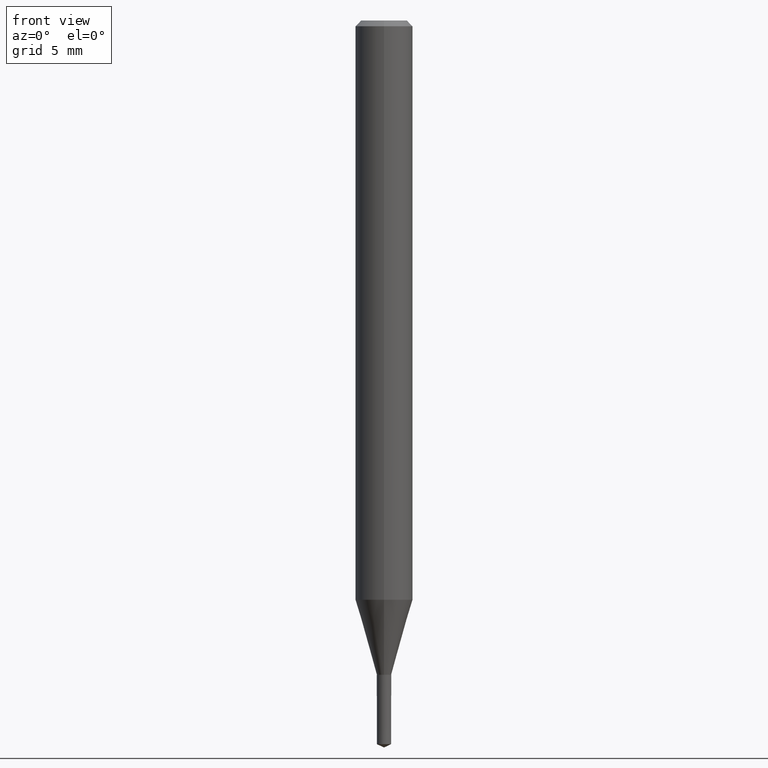
[diagram: clean part render]
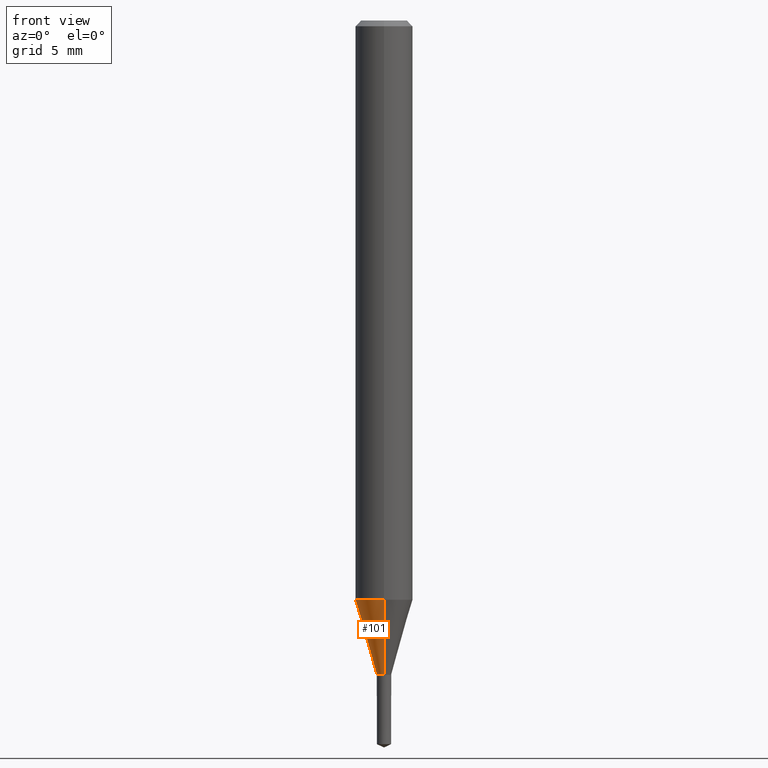
[diagram: same view with one face highlighted and labeled with its STEP entity id]
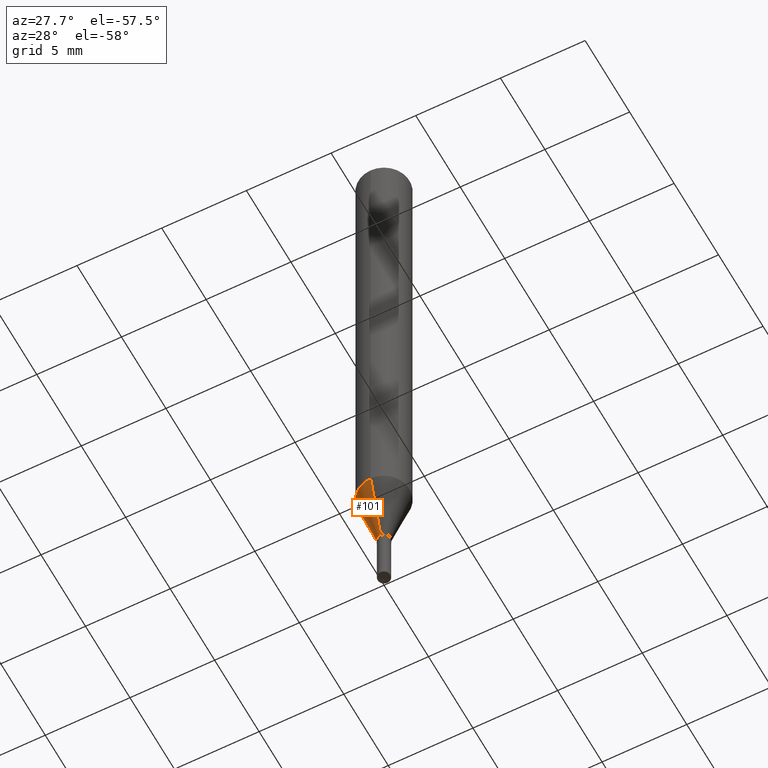
[diagram: same view with one face highlighted and labeled with its STEP entity id]
A machine part, front view. The second image highlights one B-rep face of the part: STEP entity #101.
A second angle (auxiliary view) of the same face is appended — the face is thin or edge-on in the first view.
In plain terms, the highlighted conical surface has half-angle 16.005 deg.
Its self-contained STEP definition (entity closure, byte-faithful):
#101=ADVANCED_FACE('',(#238),#239,.T.);
#103=VERTEX_POINT('',#241);
#119=VERTEX_POINT('',#259);
#125=EDGE_CURVE('',#127,#119,#265,.T.);
#127=VERTEX_POINT('',#267);
#143=EDGE_CURVE('',#169,#103,#286,.T.);
#153=EDGE_CURVE('',#103,#119,#299,.T.);
#159=EDGE_CURVE('',#127,#169,#305,.T.);
#169=VERTEX_POINT('',#315);
#238=FACE_OUTER_BOUND('',#381,.T.);
#239=CONICAL_SURFACE('',#382,0.9375,0.279334235816107);
#241=CARTESIAN_POINT('',(0.0,1.5,-30.277));
#259=CARTESIAN_POINT('',(0.0,0.375,-34.1991339745962));
#265=CIRCLE('',#417,0.375);
#267=CARTESIAN_POINT('',(4.59227382683391E-017,-0.375,-34.1991339745962));
#286=CIRCLE('',#442,1.5);
#299=LINE('',#456,#457);
#305=LINE('',#464,#465);
#315=CARTESIAN_POINT('',(1.83690953073357E-016,-1.5,-30.277));
#381=EDGE_LOOP('',(#558,#559,#560,#561));
#382=AXIS2_PLACEMENT_3D('',#562,#563,#564);
#417=AXIS2_PLACEMENT_3D('',#588,#589,#590);
#442=AXIS2_PLACEMENT_3D('',#619,#620,#621);
#456=CARTESIAN_POINT('',(-1.14806845670848E-016,0.9375,-32.2380669872981));
#457=VECTOR('',#643,1.0);
#464=CARTESIAN_POINT('',(1.14806845670848E-016,-0.9375,-32.2380669872981));
#465=VECTOR('',#648,1.0);
#558=ORIENTED_EDGE('',*,*,#153,.T.);
#559=ORIENTED_EDGE('',*,*,#125,.F.);
#560=ORIENTED_EDGE('',*,*,#159,.T.);
#561=ORIENTED_EDGE('',*,*,#143,.T.);
#562=CARTESIAN_POINT('',(0.0,0.0,-32.2380669872981));
#563=DIRECTION('',(-0.0,-0.0,1.0));
#564=DIRECTION('',(0.0,1.0,0.0));
#588=CARTESIAN_POINT('',(0.0,0.0,-34.1991339745962));
#589=DIRECTION('',(0.0,0.0,-1.0));
#590=DIRECTION('',(0.0,1.0,0.0));
#619=CARTESIAN_POINT('',(0.0,0.0,-30.277));
#620=DIRECTION('',(0.0,0.0,-1.0));
#621=DIRECTION('',(0.0,1.0,0.0));
#643=DIRECTION('',(3.37643260616104E-017,-0.275715751075612,-0.961239212999975));
#648=DIRECTION('',(3.37643260616104E-017,-0.275715751075612,0.961239212999975));